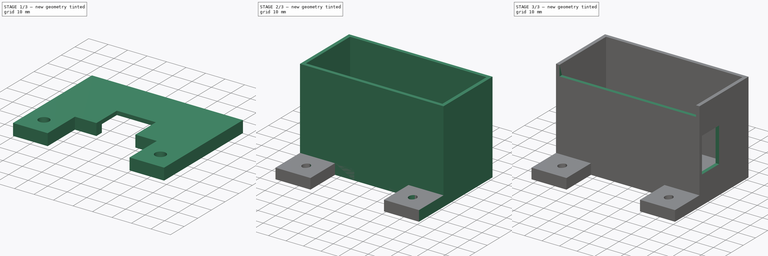
[diagram: build sequence overview — one tinted view per stage of 3, left to right]
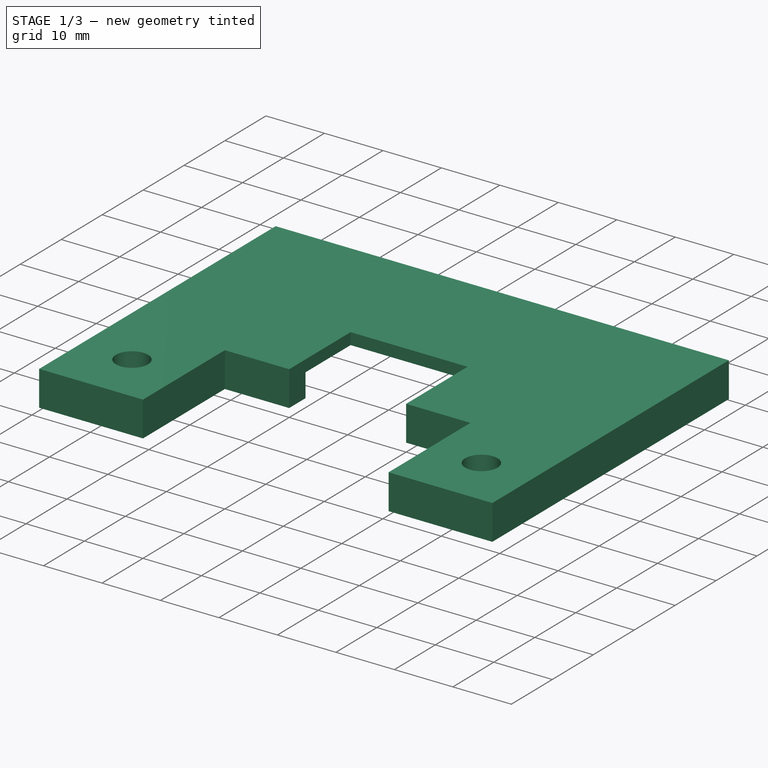
[diagram: stage 1 of 3 — iso view after this stage's code; geometry added in this stage tinted green]
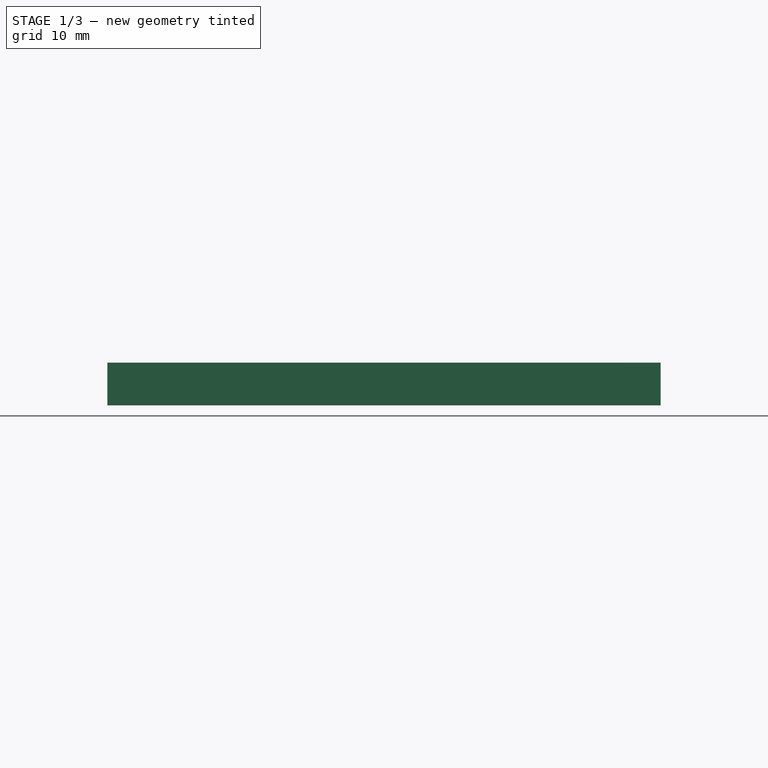
[diagram: stage 1 of 3 — front view after this stage's code; geometry added in this stage tinted green]
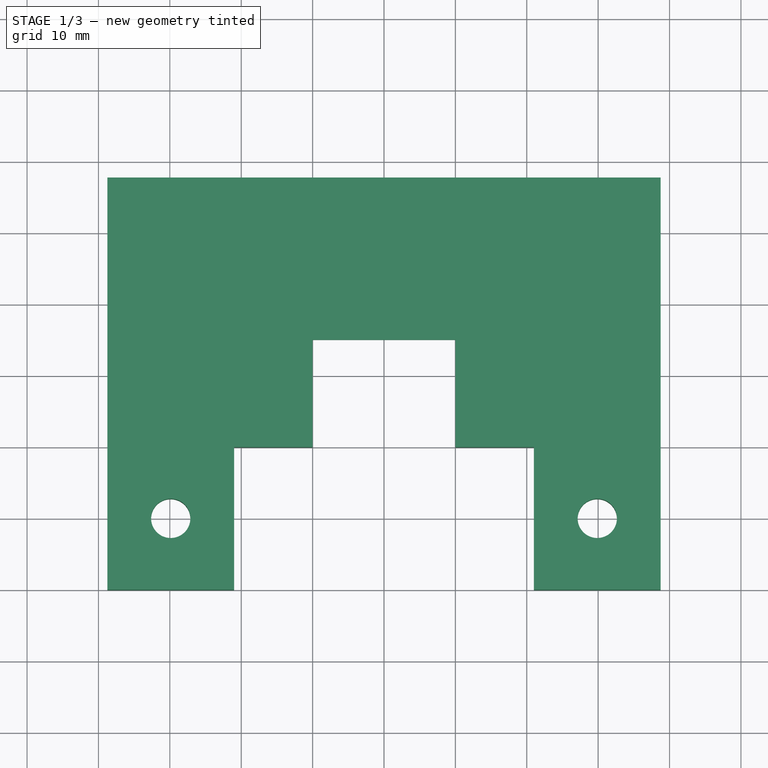
[diagram: stage 1 of 3 — top view after this stage's code; geometry added in this stage tinted green]
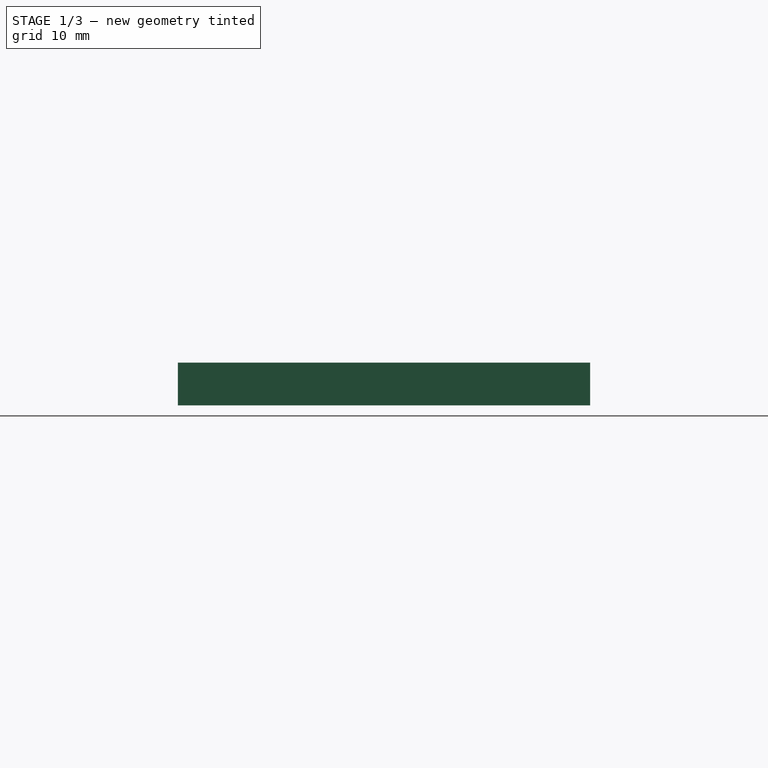
[diagram: stage 1 of 3 — right view after this stage's code; geometry added in this stage tinted green]
FCSTD DOCUMENT  (FreeCAD 0.20R27861 (Git))
Label: connection box
License: All rights reserved
LicenseURL: http://en.wikipedia.org/wiki/All_rights_reserved
objects: Sketcher::SketchObject×6, PartDesign::Pad×3, PartDesign::Pocket×3, PartDesign::Body×2, PartDesign::Thickness×1
note: 22 computed .brp shape members not serialized (recipe doc carries the construction recipe); baked Part::Feature solids carry a one-line shape summary decoded from their .brp

FEATURE [PartDesign::Body] Body  label="Box"
  Group = -> [Sketch,Pad,Thickness,Sketch001,Pad001,Sketch002,Pocket,Sketch003,Pocket001]
  Origin = -> Origin
  Tip = -> Pocket001
FEATURE [Sketcher::SketchObject] Sketch004
  FullyConstrained = true
  MapMode = 5
  Support = -> [XY_Plane001]
  sketch-geometry (16):
    g0: LineSegment StartX=-38.75 StartY=17.75 StartZ=0 EndX=38.75 EndY=17.75 EndZ=0
    g1: LineSegment StartX=38.75 StartY=17.75 StartZ=0 EndX=38.75 EndY=-17.75 EndZ=0
    g2: LineSegment StartX=-38.75 StartY=-17.75 StartZ=0 EndX=-38.75 EndY=17.75 EndZ=0
    g3: LineSegment StartX=-10 StartY=-20 StartZ=0 EndX=-10 EndY=-5 EndZ=0
    g4: LineSegment StartX=-10 StartY=-5 StartZ=0 EndX=10 EndY=-5 EndZ=0
    g5: LineSegment StartX=10 StartY=-5 StartZ=0 EndX=10 EndY=-20 EndZ=0
    g6: LineSegment StartX=-38.75 StartY=-17.75 StartZ=0 EndX=-38.75 EndY=-40 EndZ=0
    g7: LineSegment StartX=-38.75 StartY=-40 StartZ=0 EndX=-21 EndY=-40 EndZ=0
    g8: LineSegment StartX=-21 StartY=-40 StartZ=0 EndX=-21 EndY=-20 EndZ=0
    g9: LineSegment StartX=-21 StartY=-20 StartZ=0 EndX=-10 EndY=-20 EndZ=0
    g10: LineSegment StartX=38.75 StartY=-17.75 StartZ=0 EndX=38.75 EndY=-40 EndZ=0
    g11: LineSegment StartX=38.75 StartY=-40 StartZ=0 EndX=21 EndY=-40 EndZ=0
    g12: LineSegment StartX=10 StartY=-20 StartZ=0 EndX=21 EndY=-20 EndZ=0
    g13: LineSegment StartX=21 StartY=-20 StartZ=0 EndX=21 EndY=-40 EndZ=0
    g14: Circle CenterX=-29.875 CenterY=-30 CenterZ=0 NormalX=0 NormalY=0 NormalZ=1 AngleXU=0 Radius=2.75
    g15: Circle CenterX=29.875 CenterY=-30 CenterZ=0 NormalX=0 NormalY=0 NormalZ=1 AngleXU=0 Radius=2.75
  constraints (45):
    c: Coincident(g0,g1)
    c: Coincident(g2,g0)
    c: Horizontal(g0)
    c: Vertical(g1)
    c: Vertical(g2)
    c: DistanceX(g0,g0) = 77.5
    c: Symmetric(g0,g1,g-1)
    c: DistanceY(g2,g2) = 35.5
    c: Horizontal(g2,g1)
    c: Vertical(g3)
    c: Coincident(g4,g3)
    c: Horizontal(g4)
    c: Coincident(g5,g4)
    c: Vertical(g5)
    c: DistanceX(g4,g4) = 20
    c: DistanceY(g5,g5) = 15
    c: Coincident(g6,g2)
    c: Vertical(g6)
    c: DistanceY(g6,g6) = 22.25
    c: Coincident(g7,g6)
    c: Horizontal(g7)
    c: DistanceX(g7,g7) = 17.75
    c: Coincident(g8,g7)
    c: Vertical(g8)
    c: Coincident(g9,g8)
    c: Coincident(g9,g3)
    c: Horizontal(g9)
    c: Equal(g5,g3)
    c: DistanceY(g8,g8) = 20
    c: Coincident(g10,g1)
    c: Vertical(g10)
    c: Coincident(g11,g10)
    c: Horizontal(g11)
    c: Coincident(g12,g5)
    c: Horizontal(g12)
    c: Coincident(g13,g12)
    c: Vertical(g13)
    c: Coincident(g11,g13)
    c: Equal(g7,g11)
    c: Equal(g8,g13)
    c: Equal(g9,g12)
    c: Symmetric(g6,g8,g14)
    c: Symmetric(g12,g10,g15)
    c: Diameter(g15) = 5.5
    c: Equal(g15,g14)
FEATURE [PartDesign::Pad] Pad002
  Direction = (0,0,1)
  Length = 6
  Length2 = 10
  Profile = -> Sketch004
  ReferenceAxis = -> Sketch004 [N_Axis]
  Refine = true
  Type = 0
FEATURE [Sketcher::SketchObject] Sketch005
  FullyConstrained = true
  MapMode = 5
  Support = -> [XY_Plane001]
  sketch-geometry (4):
    g0: LineSegment StartX=-36 StartY=16 StartZ=0 EndX=36 EndY=16 EndZ=0
    g1: LineSegment StartX=36 StartY=16 StartZ=0 EndX=36 EndY=-16 EndZ=0
    g2: LineSegment StartX=36 StartY=-16 StartZ=0 EndX=-36 EndY=-16 EndZ=0
    g3: LineSegment StartX=-36 StartY=-16 StartZ=0 EndX=-36 EndY=16 EndZ=0
  constraints (11):
    c: Coincident(g0,g1)
    c: Coincident(g1,g2)
    c: Coincident(g2,g3)
    c: Coincident(g3,g0)
    c: Horizontal(g0)
    c: Horizontal(g2)
    c: Vertical(g1)
    c: Vertical(g3)
    c: Symmetric(g1,g0,g-1)
    c: DistanceX(g2,g2) = 72
    c: DistanceY(g1,g1) = 32
FEATURE [PartDesign::Pocket] Pocket002
  BaseFeature = -> Pad002
  Direction = (0,0,-1)
  Length = 4
  Length2 = 5
  Profile = -> Sketch005
  ReferenceAxis = -> Sketch005 [N_Axis]
  Refine = true
  Reversed = true
  Type = 0
FEATURE [PartDesign::Body] Body001  label="Lid"
  Group = -> [Sketch004,Pad002,Sketch005,Pocket002]
  Origin = -> Origin001
  Placement = pos=(0,0,46) rot=(0,0,1;0rad)
  Tip = -> Pocket002
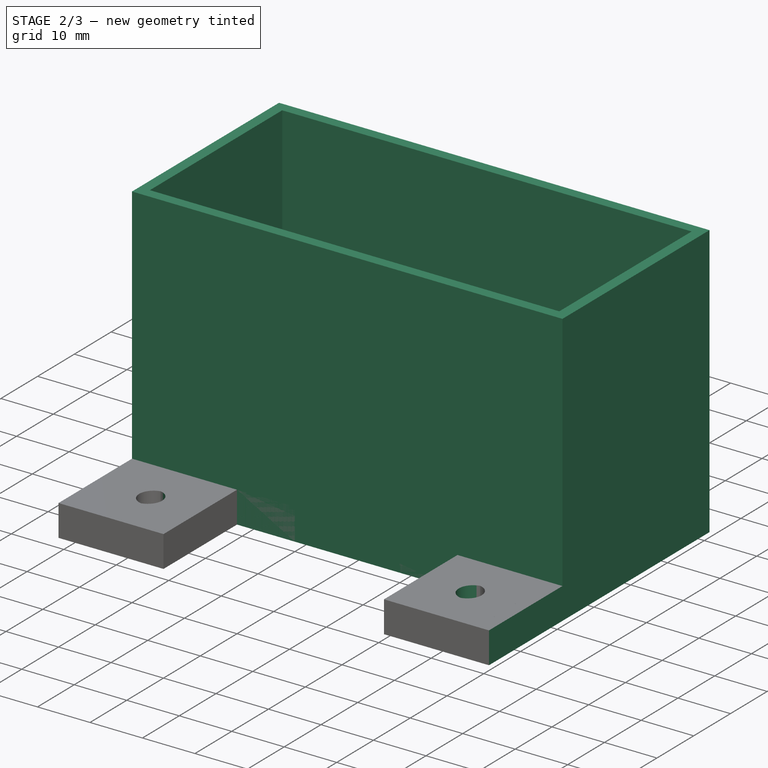
[diagram: stage 2 of 3 — iso view after this stage's code; geometry added in this stage tinted green]
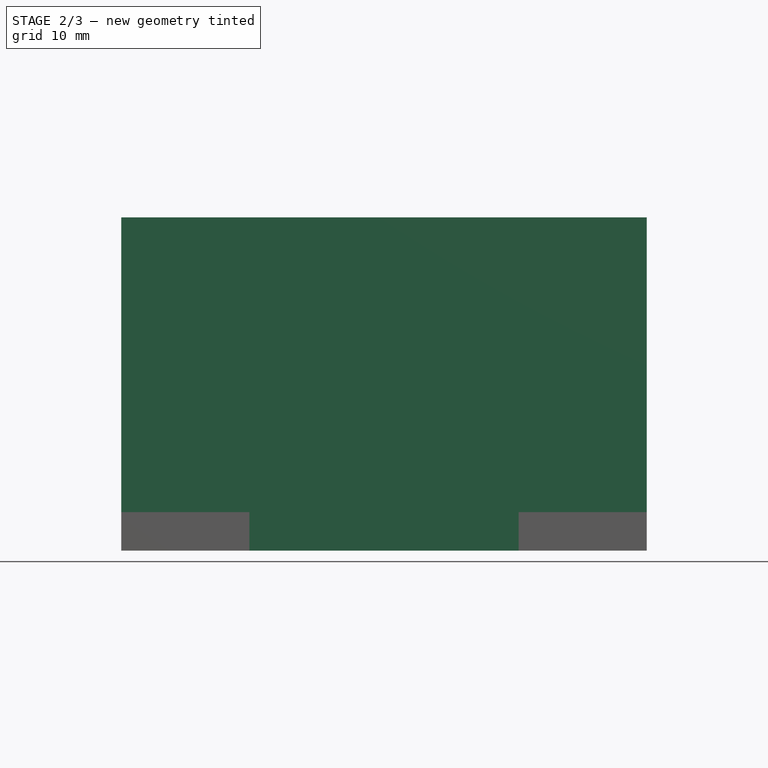
[diagram: stage 2 of 3 — front view after this stage's code; geometry added in this stage tinted green]
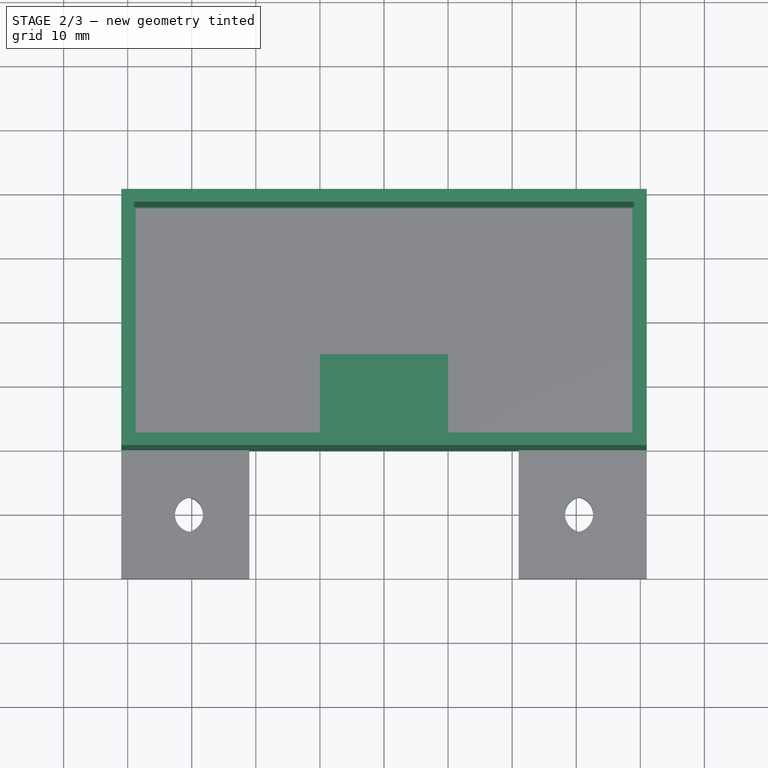
[diagram: stage 2 of 3 — top view after this stage's code; geometry added in this stage tinted green]
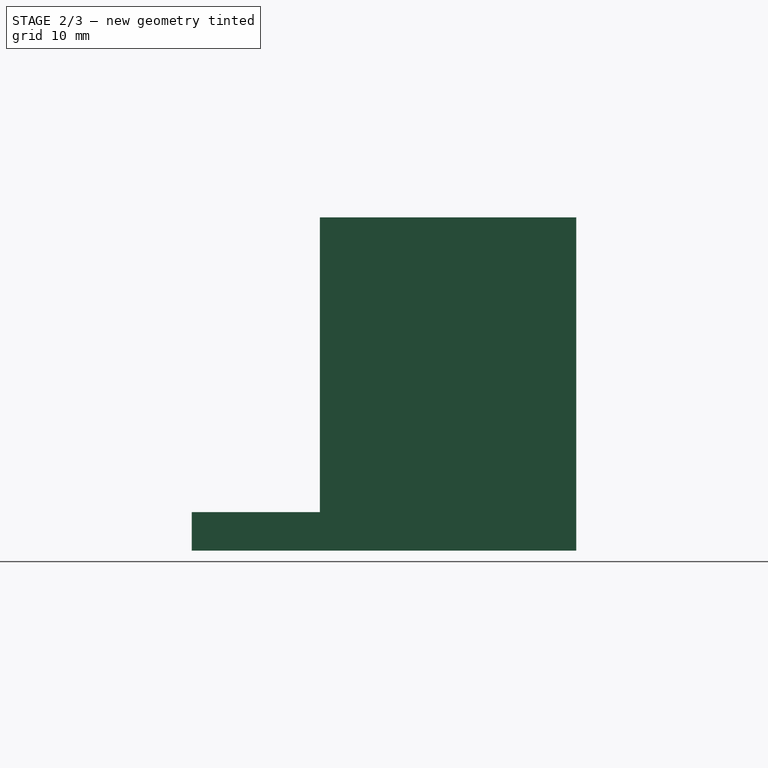
[diagram: stage 2 of 3 — right view after this stage's code; geometry added in this stage tinted green]
FEATURE [Sketcher::SketchObject] Sketch
  FullyConstrained = true
  MapMode = 5
  Support = -> [XY_Plane]
  sketch-geometry (4):
    g0: LineSegment StartX=-41 StartY=20 StartZ=0 EndX=41 EndY=20 EndZ=0
    g1: LineSegment StartX=41 StartY=20 StartZ=0 EndX=41 EndY=-20 EndZ=0
    g2: LineSegment StartX=41 StartY=-20 StartZ=0 EndX=-41 EndY=-20 EndZ=0
    g3: LineSegment StartX=-41 StartY=-20 StartZ=0 EndX=-41 EndY=20 EndZ=0
  constraints (11):
    c: Coincident(g0,g1)
    c: Coincident(g1,g2)
    c: Coincident(g2,g3)
    c: Coincident(g3,g0)
    c: Horizontal(g0)
    c: Horizontal(g2)
    c: Vertical(g1)
    c: Vertical(g3)
    c: Symmetric(g0,g1,g-1)
    c: DistanceX(g0,g0) = 82
    c: DistanceY(g1,g1) = 40
FEATURE [PartDesign::Pad] Pad
  Direction = (0,0,1)
  Length = 52
  Length2 = 10
  Profile = -> Sketch
  ReferenceAxis = -> Sketch [N_Axis]
  Refine = true
  Type = 0
FEATURE [PartDesign::Thickness] Thickness
  Base = -> Pad [Face6]
  BaseFeature = -> Pad
  Intersection = false
  Join = 1
  Mode = 0
  Refine = true
  Reversed = true
  SupportTransform = false
  Value = 2
FEATURE [Sketcher::SketchObject] Sketch001
  FullyConstrained = true
  MapMode = 5
  Support = -> [XY_Plane]
  sketch-geometry (10):
    g0: LineSegment StartX=-41 StartY=-20 StartZ=0 EndX=-21 EndY=-20 EndZ=0
    g1: LineSegment StartX=-21 StartY=-20 StartZ=0 EndX=-21 EndY=-40 EndZ=0
    g2: LineSegment StartX=-21 StartY=-40 StartZ=0 EndX=-41 EndY=-40 EndZ=0
    g3: LineSegment StartX=-41 StartY=-40 StartZ=0 EndX=-41 EndY=-20 EndZ=0
    g4: LineSegment StartX=21 StartY=-20 StartZ=0 EndX=41 EndY=-20 EndZ=0
    g5: LineSegment StartX=41 StartY=-20 StartZ=0 EndX=41 EndY=-40 EndZ=0
    g6: LineSegment StartX=41 StartY=-40 StartZ=0 EndX=21 EndY=-40 EndZ=0
    g7: LineSegment StartX=21 StartY=-40 StartZ=0 EndX=21 EndY=-20 EndZ=0
    g8: Circle CenterX=-31 CenterY=-30 CenterZ=0 NormalX=0 NormalY=0 NormalZ=1 AngleXU=0 Radius=2.75
    g9: Circle CenterX=31 CenterY=-30 CenterZ=0 NormalX=0 NormalY=0 NormalZ=1 AngleXU=0 Radius=2.75
  constraints (27):
    c: Coincident(g0,g1)
    c: Coincident(g1,g2)
    c: Coincident(g2,g3)
    c: Coincident(g3,g0)
    c: Horizontal(g0)
    c: Horizontal(g2)
    c: Vertical(g1)
    c: Vertical(g3)
    c: Coincident(g4,g5)
    c: Coincident(g5,g6)
    c: Coincident(g6,g7)
    c: Coincident(g7,g4)
    c: Horizontal(g4)
    c: Horizontal(g6)
    c: Vertical(g5)
    c: Vertical(g7)
    c: Horizontal(g0,g4)
    c: Symmetric(g1,g6,g-2)
    c: Equal(g2,g6)
    c: DistanceX(g-1,g4) = 41
    c: DistanceY(g4,g-1) = 20
    c: DistanceY(g3,g3) = 20
    c: Equal(g2,g3)
    c: Symmetric(g0,g1,g8)
    c: Diameter(g8) = 5.5
    c: Symmetric(g4,g5,g9)
    c: Equal(g9,g8)
FEATURE [PartDesign::Pad] Pad001
  BaseFeature = -> Thickness
  Direction = (0,0,1)
  Length = 6
  Length2 = 10
  Profile = -> Sketch001
  ReferenceAxis = -> Sketch001 [N_Axis]
  Refine = true
  Type = 0
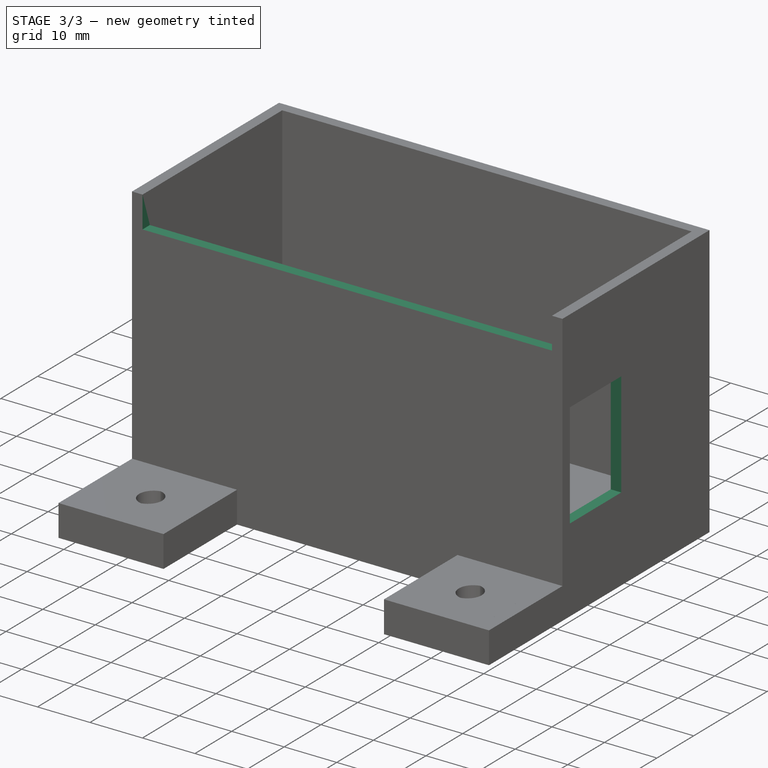
[diagram: stage 3 of 3 — iso view after this stage's code; geometry added in this stage tinted green]
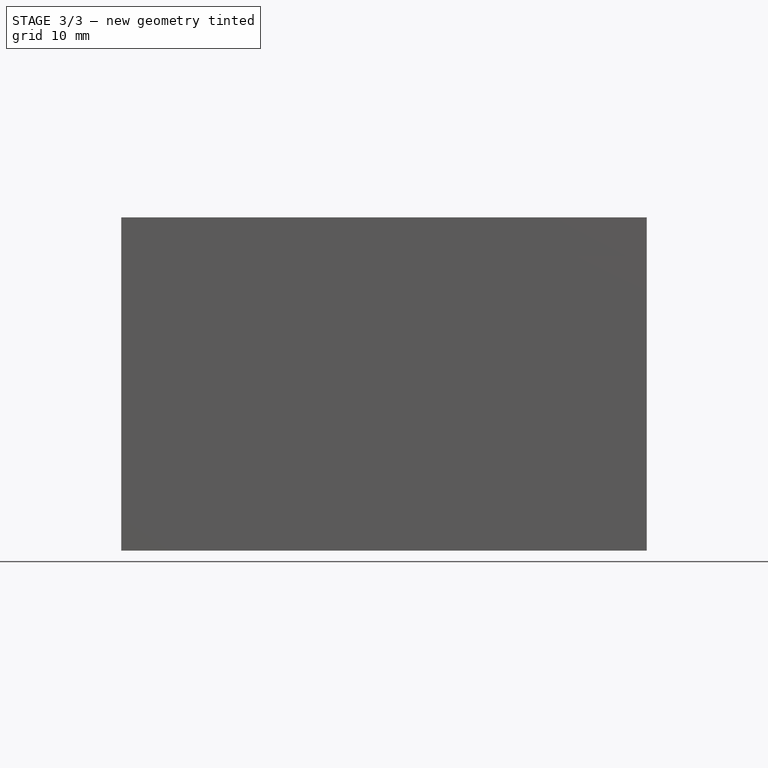
[diagram: stage 3 of 3 — front view after this stage's code; geometry added in this stage tinted green]
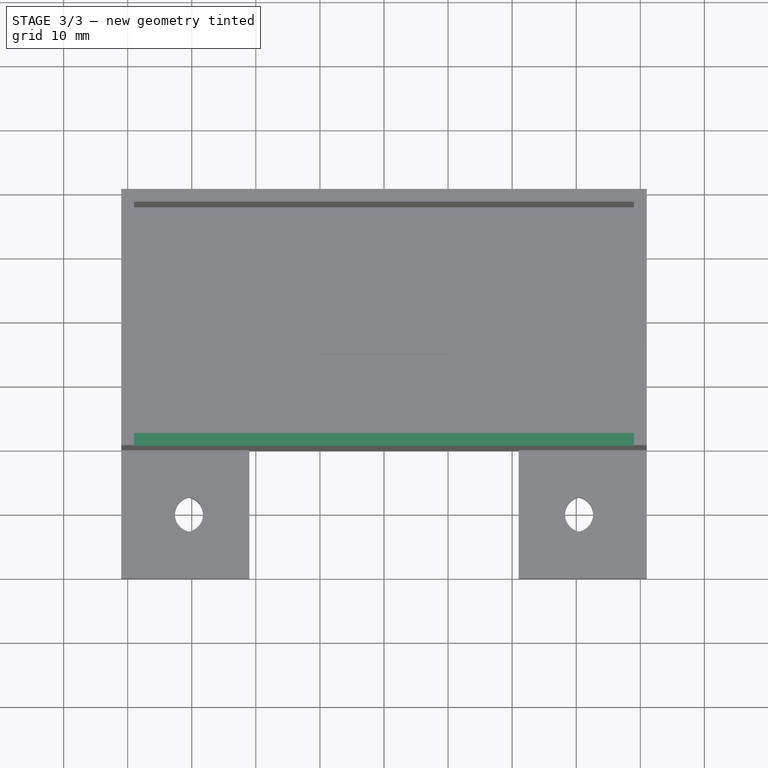
[diagram: stage 3 of 3 — top view after this stage's code; geometry added in this stage tinted green]
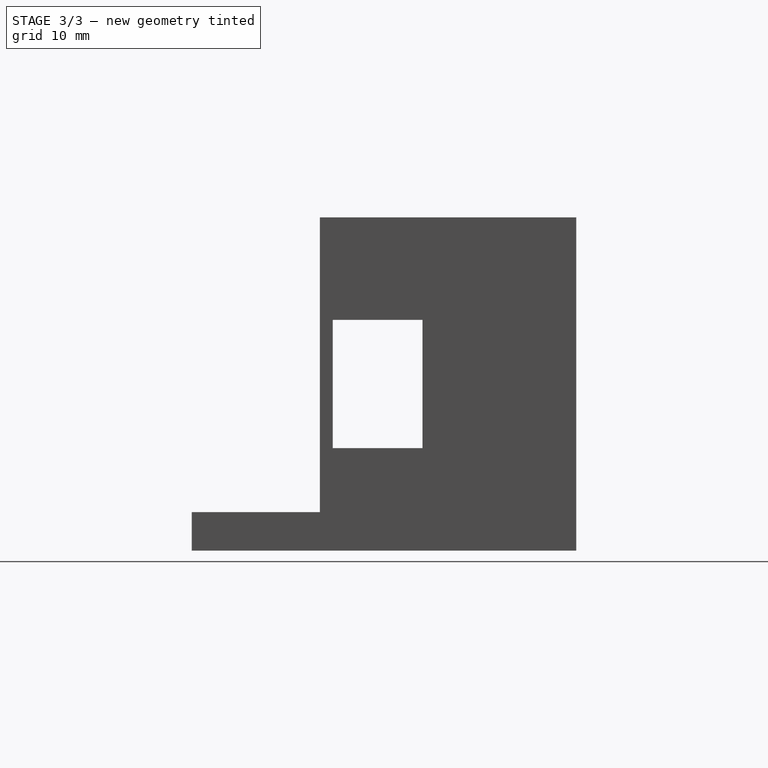
[diagram: stage 3 of 3 — right view after this stage's code; geometry added in this stage tinted green]
FEATURE [Sketcher::SketchObject] Sketch002
  FullyConstrained = true
  MapMode = 5
  Placement = pos=(0,0,0) rot=(0.57735,0.57735,0.57735;2.0944rad)
  Support = -> [YZ_Plane]
  sketch-geometry (4):
    g0: LineSegment StartX=-18 StartY=36 StartZ=0 EndX=-4 EndY=36 EndZ=0
    g1: LineSegment StartX=-4 StartY=36 StartZ=0 EndX=-4 EndY=16 EndZ=0
    g2: LineSegment StartX=-4 StartY=16 StartZ=0 EndX=-18 EndY=16 EndZ=0
    g3: LineSegment StartX=-18 StartY=16 StartZ=0 EndX=-18 EndY=36 EndZ=0
  constraints (12):
    c: Coincident(g0,g1)
    c: Coincident(g1,g2)
    c: Coincident(g2,g3)
    c: Coincident(g3,g0)
    c: Horizontal(g0)
    c: Horizontal(g2)
    c: Vertical(g1)
    c: Vertical(g3)
    c: DistanceY(g1,g1) = 20
    c: DistanceX(g1,g-1) = 4
    c: DistanceX(g0,g0) = 14
    c: DistanceY(g-1,g1) = 16
FEATURE [PartDesign::Pocket] Pocket
  BaseFeature = -> Pad001
  Direction = (-1,2e-16,-3e-16)
  Length = 5
  Length2 = 5
  Midplane = true
  Profile = -> Sketch002
  ReferenceAxis = -> Sketch002 [N_Axis]
  Refine = true
  Type = 1
FEATURE [Sketcher::SketchObject] Sketch003
  FullyConstrained = true
  MapMode = 5
  Placement = pos=(0,0,0) rot=(1,0,0;1.5708rad)
  Support = -> [XZ_Plane]
  sketch-geometry (4):
    g0: LineSegment StartX=-39 StartY=56 StartZ=0 EndX=39 EndY=56 EndZ=0
    g1: LineSegment StartX=39 StartY=56 StartZ=0 EndX=39 EndY=46 EndZ=0
    g2: LineSegment StartX=39 StartY=46 StartZ=0 EndX=-39 EndY=46 EndZ=0
    g3: LineSegment StartX=-39 StartY=46 StartZ=0 EndX=-39 EndY=56 EndZ=0
  constraints (11):
    c: Coincident(g0,g1)
    c: Coincident(g1,g2)
    c: Coincident(g2,g3)
    c: Coincident(g3,g0)
    c: Horizontal(g2)
    c: Vertical(g1)
    c: Vertical(g3)
    c: DistanceY(g-1,g1) = 46
    c: Symmetric(g0,g0,g-2)
    c: DistanceY(g1,g1) = 10
    c: DistanceX(g0,g0) = 78
FEATURE [PartDesign::Pocket] Pocket001
  BaseFeature = -> Pocket
  Direction = (0,1,2e-16)
  Length = 5
  Length2 = 5
  Profile = -> Sketch003
  ReferenceAxis = -> Sketch003 [N_Axis]
  Refine = true
  Reversed = true
  Type = 1
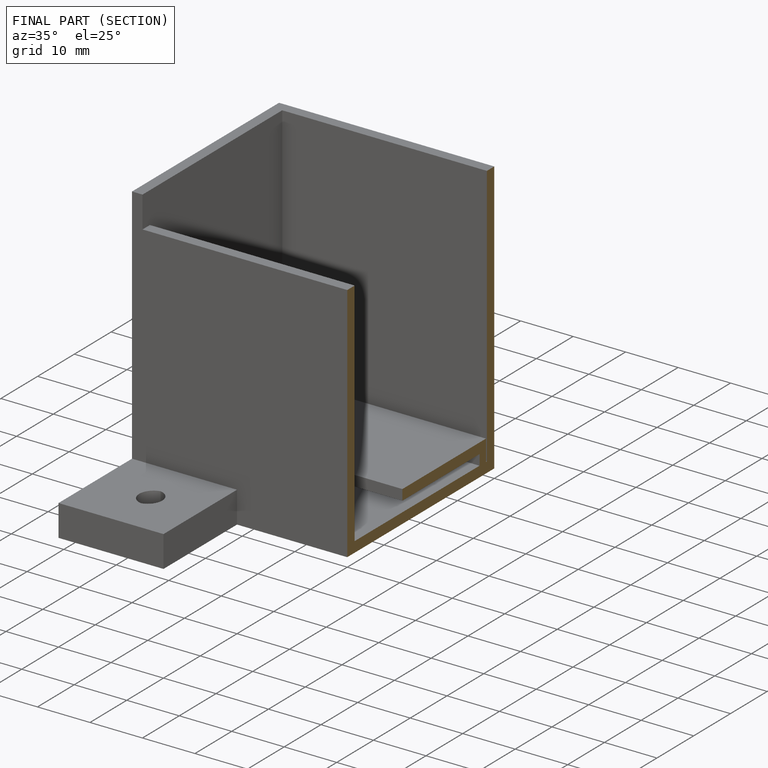
[diagram: finished part — half-section view (interior)]
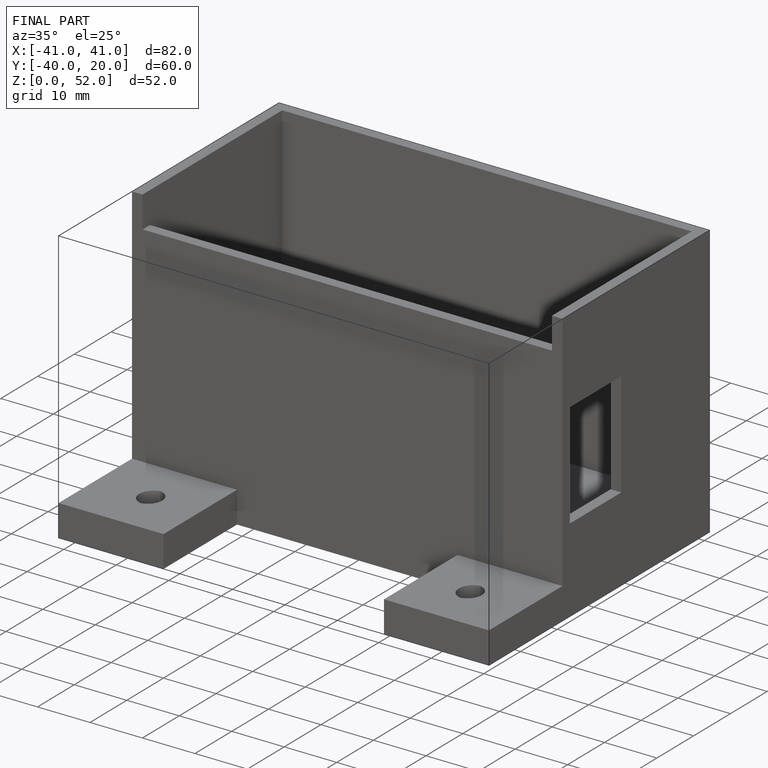
[diagram: finished part — iso view with bounding-box wireframe]
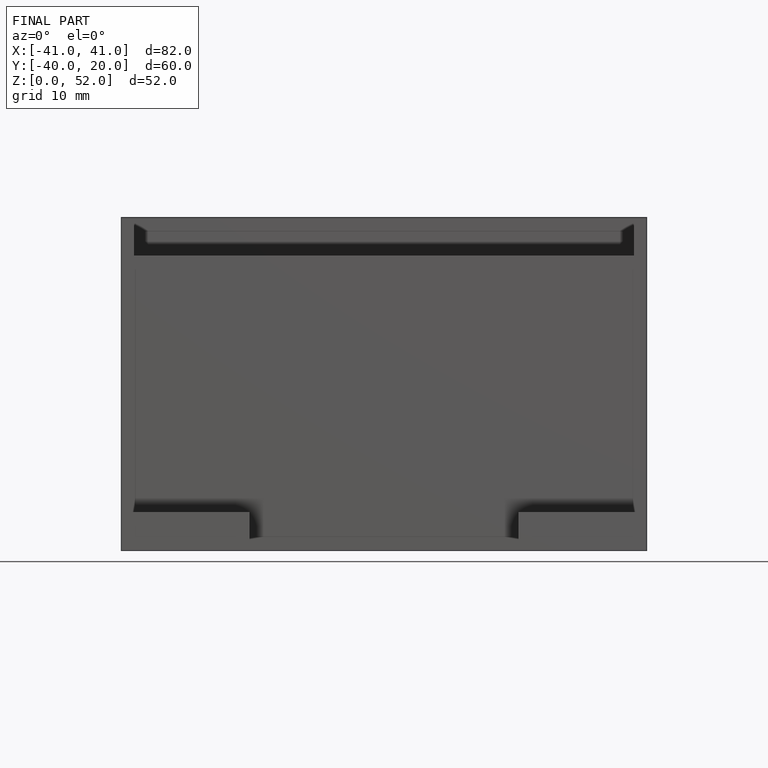
[diagram: finished part — front view with bounding-box wireframe]
